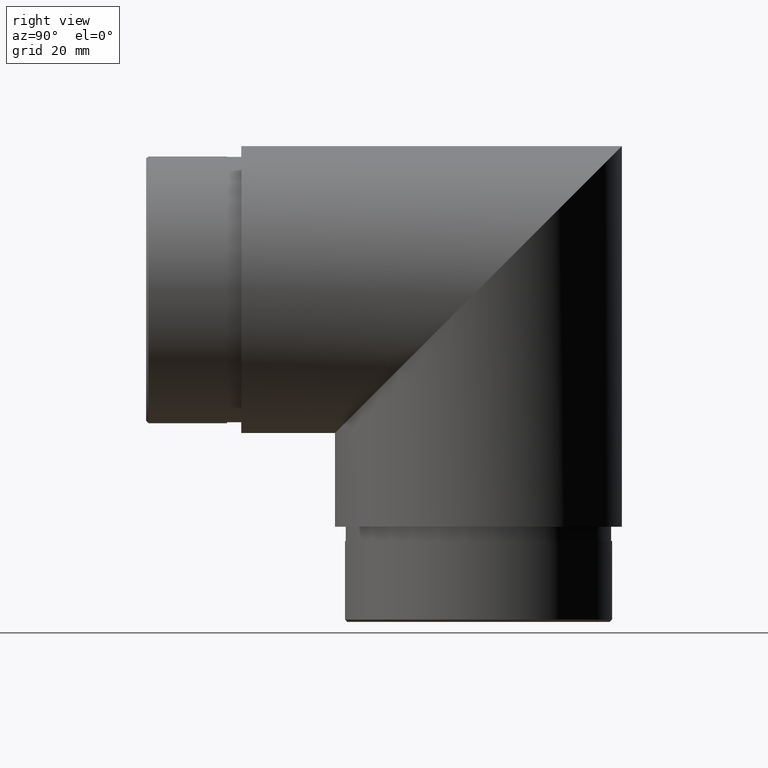
[diagram: clean part render]
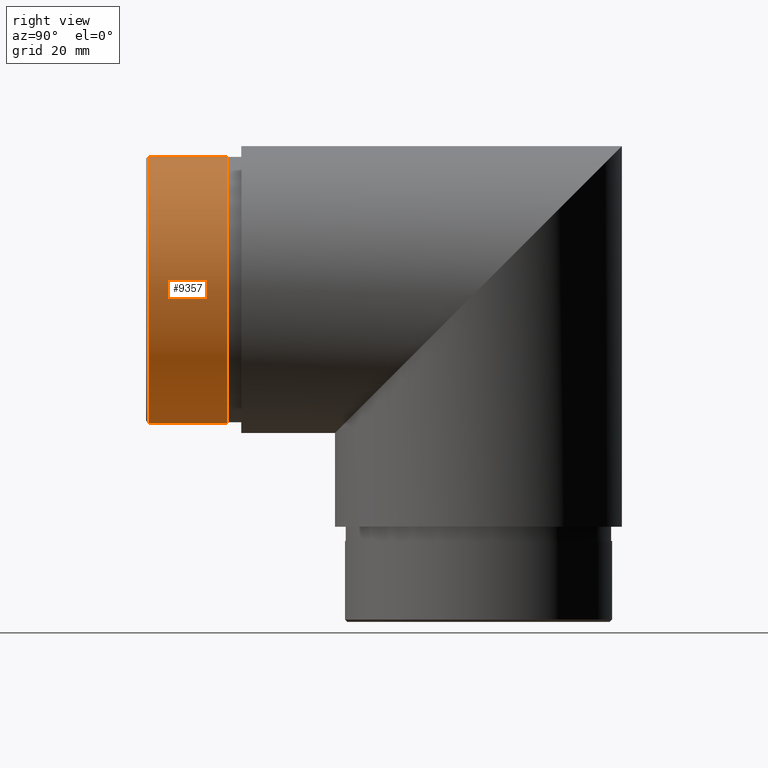
[diagram: same view with one face highlighted and labeled with its STEP entity id]
A machine part, right view. The second image highlights one B-rep face of the part: STEP entity #9357.
In plain terms, the highlighted cylindrical surface (bore or boss wall) has radius 28.1 mm, axis along (-0, 1, 0).
Its self-contained STEP definition (entity closure, byte-faithful):
#265 = FACE_OUTER_BOUND ( 'NONE', #4994, .T. ) ;
#687 = CIRCLE ( 'NONE', #4104, 28.09999999999999800 ) ;
#1171 = EDGE_CURVE ( 'NONE', #1767, #1767, #2421, .T. ) ;
#1767 = VERTEX_POINT ( 'NONE', #7083 ) ;
#2421 = CIRCLE ( 'NONE', #8403, 28.09999999999999800 ) ;
#2717 = CARTESIAN_POINT ( 'NONE',  ( 0.0000000000000000000, -19.50000000000000000, 0.0000000000000000000 ) ) ;
#2933 = CARTESIAN_POINT ( 'NONE',  ( 0.0000000000000000000, -19.50000000000000000, -28.09999999999999800 ) ) ;
#3039 = CARTESIAN_POINT ( 'NONE',  ( 0.0000000000000000000, -20.00000000000000000, 0.0000000000000000000 ) ) ;
#3135 = DIRECTION ( 'NONE',  ( 0.0000000000000000000, -1.000000000000000000, 0.0000000000000000000 ) ) ;
#4104 = AXIS2_PLACEMENT_3D ( 'NONE', #2717, #5121, #4267 ) ;
#4267 = DIRECTION ( 'NONE',  ( 0.0000000000000000000, 0.0000000000000000000, -1.000000000000000000 ) ) ;
#4517 = CYLINDRICAL_SURFACE ( 'NONE', #5584, 28.09999999999999800 ) ;
#4994 = EDGE_LOOP ( 'NONE', ( #5945 ) ) ;
#5121 = DIRECTION ( 'NONE',  ( 0.0000000000000000000, 1.000000000000000000, 0.0000000000000000000 ) ) ;
#5584 = AXIS2_PLACEMENT_3D ( 'NONE', #3039, #6482, #8278 ) ;
#5807 = VERTEX_POINT ( 'NONE', #2933 ) ;
#5945 = ORIENTED_EDGE ( 'NONE', *, *, #1171, .T. ) ;
#6482 = DIRECTION ( 'NONE',  ( -0.0000000000000000000, 1.000000000000000000, 0.0000000000000000000 ) ) ;
#7083 = CARTESIAN_POINT ( 'NONE',  ( 0.0000000000000000000, -3.000000000000000000, -28.09999999999999800 ) ) ;
#7503 = CARTESIAN_POINT ( 'NONE',  ( 0.0000000000000000000, -3.000000000000000000, 0.0000000000000000000 ) ) ;
#8278 = DIRECTION ( 'NONE',  ( 0.0000000000000000000, 0.0000000000000000000, 1.000000000000000000 ) ) ;
#8403 = AXIS2_PLACEMENT_3D ( 'NONE', #7503, #3135, #9211 ) ;
#9211 = DIRECTION ( 'NONE',  ( 0.0000000000000000000, 0.0000000000000000000, -1.000000000000000000 ) ) ;
#9305 = ORIENTED_EDGE ( 'NONE', *, *, #11084, .T. ) ;
#9357 = ADVANCED_FACE ( 'NONE', ( #9523, #265 ), #4517, .T. ) ;
#9523 = FACE_OUTER_BOUND ( 'NONE', #11371, .T. ) ;
#11084 = EDGE_CURVE ( 'NONE', #5807, #5807, #687, .T. ) ;
#11371 = EDGE_LOOP ( 'NONE', ( #9305 ) ) ;